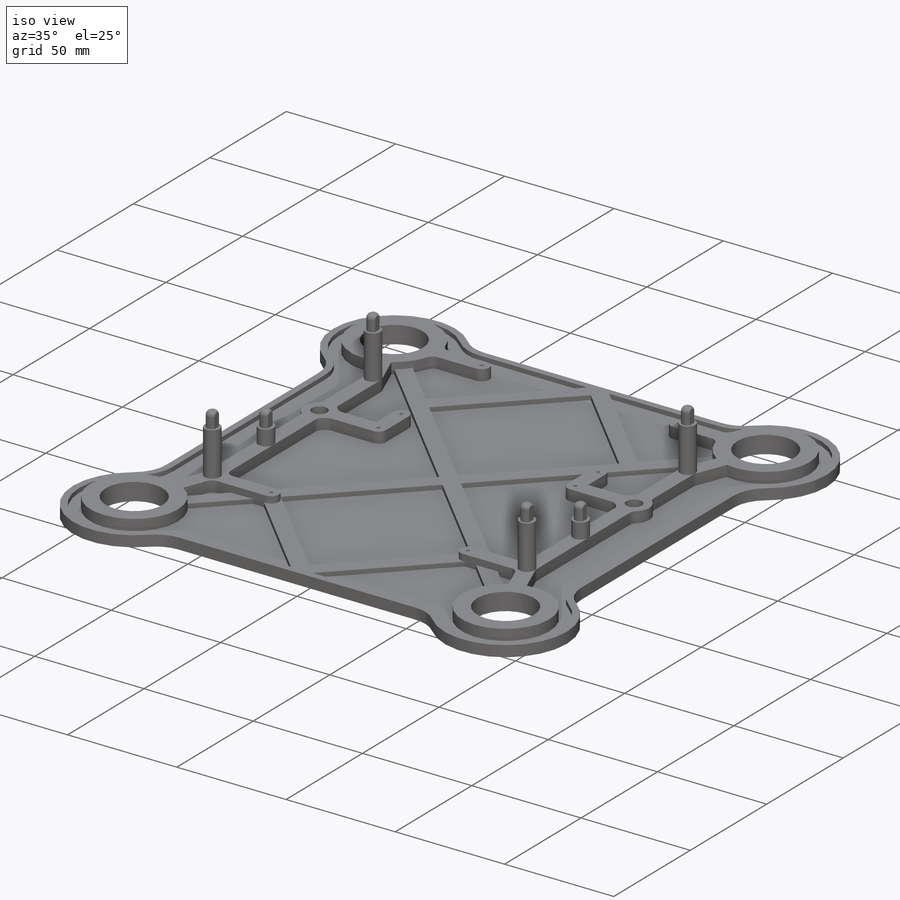
[diagram: iso view]
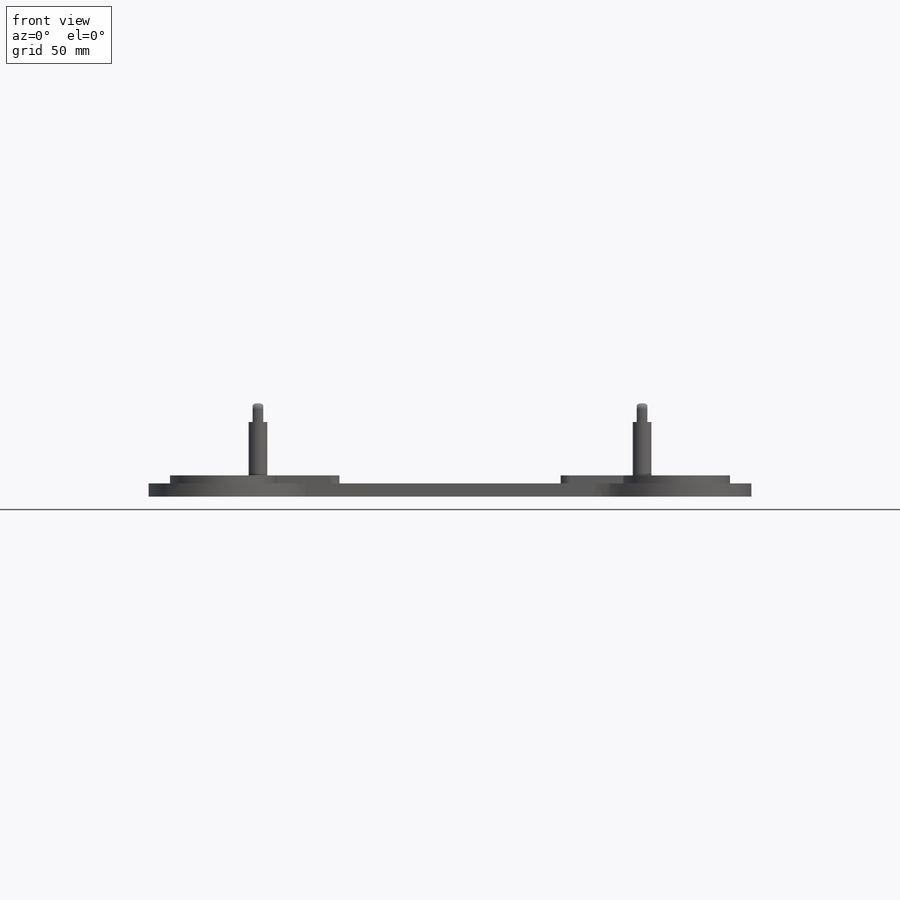
[diagram: front view]
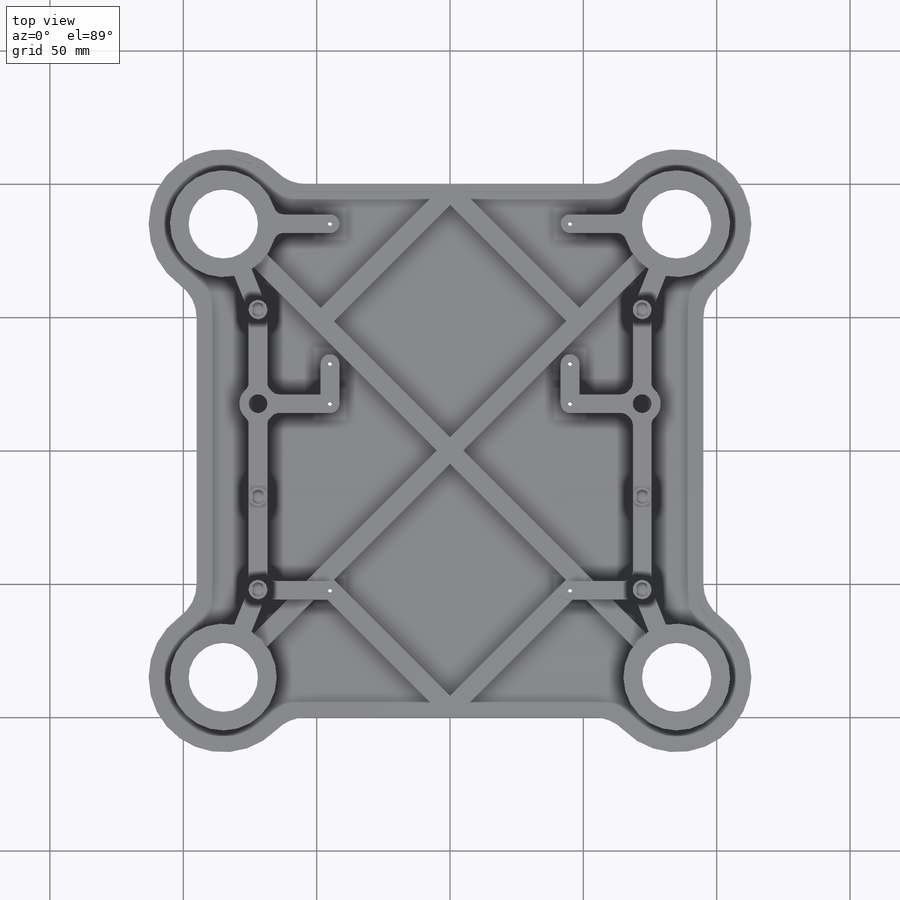
[diagram: top view]
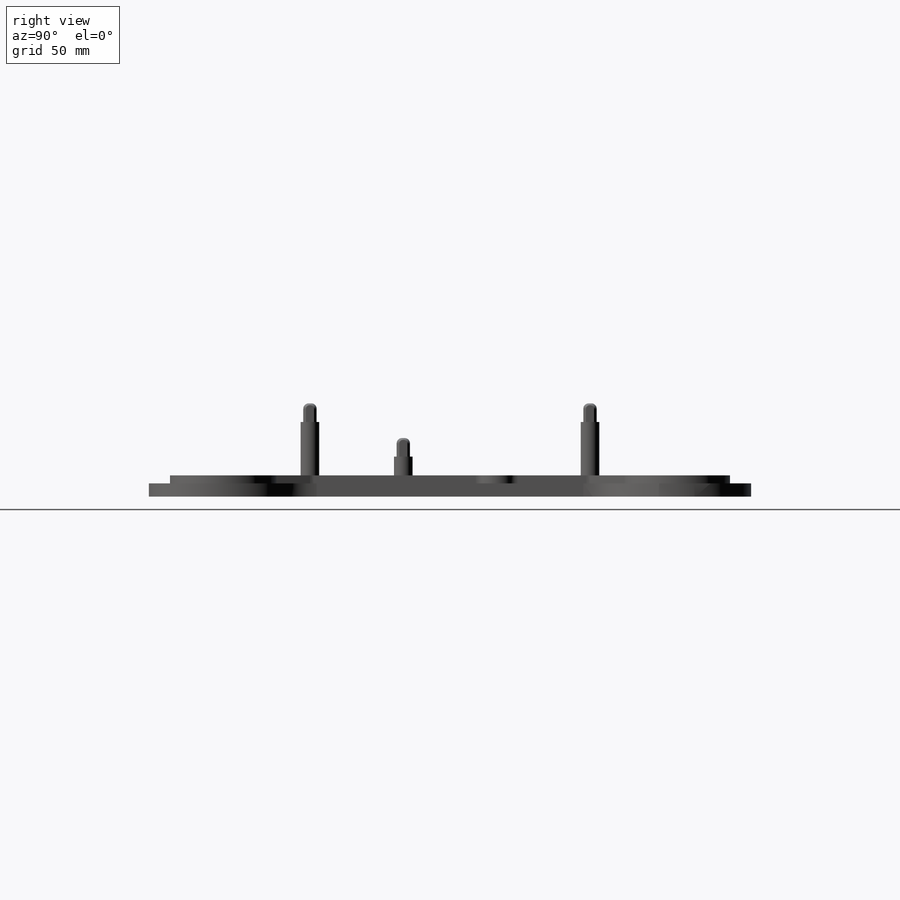
[diagram: right view]
SOLIDWORKS PART (.sldprt)
format: sldprt  version: not decoded by parser v0  size: 867,328 bytes
history: native  units: mm
features: sketch x11, extrude x8, cut_extrude x2, fillet x2, material x1, mirror x1 (+12 scaffold rows collapsed)
feature tree (37):
  scaffold x12  (default folders/planes/origin — collapsed)
  material  "ABS"
  sketch  "Sketch1"  dims[c1.D1=26.0mm c1.D2=~20.400633mm c1.D3=~20.400633mm c1.D4=160.0mm c1.D5=~39.389855mm c1.D6=160.0mm c2.D2=20.0mm c2.D3=~34.931347mm c2.D5=20.0mm c2.D4=160.0mm c3.D5=20.0mm c3.D2=70.2mm c3.D3=70.2mm c3.D4=~74.750669mm c4.D5=10.0mm c4.D6=~198.555584mm c4.D2=200.0mm c4.D3=~88.506702mm c5.D2=10.0mm c5.D3=~31.339894mm c6.D3=90.0deg c7.D3=~11.485198mm c7.D5=7.5mm c7.D2=200.0mm c8.D3=200.0mm c9.D3=90.0deg]
  extrude  "Base"  Depth=3mm
  sketch  "Sketch2"  dims[c1.D2=5.0mm c1.D1=0.0mm c2.D1=2.0mm c2.D5=3.0mm c2.D6=1.0mm c2.D7=5.0mm]
  sketch  "Sketch4"  dims[D1=20.0mm]
  extrude  "wheel mount"  Depth=8mm
  sketch  "Sketch5"  dims[D1=35.0mm D2=7.0mm D3=35.0mm D4=10.0mm]
  extrude  "upper base mount"  Depth=25mm
  sketch  "Sketch11"  dims[c1.D1=7.0mm c1.D2=~3.203317mm c1.D4=3.5mm c1.D7=3.5mm c2.D1=~4.782596mm c2.D2=~7.772543mm c2.D3=~5.756918mm c3.D2=3.5mm c3.D4=4.6084mm c3.D5=~5.157217mm c3.D6=~5.265805mm c3.D1=3.5mm c4.D2=5.0mm c4.D3=80.0mm c4.D4=40.0mm c5.D2=3.5mm c5.D3=3.5mm c5.D4=45.0mm c5.D5=70.0mm c6.D4=7.0mm c6.D6=45.0mm c6.D8=3.5mm c6.D9=3.5mm c6.D10=~27.009619mm c6.D5=70.0mm c7.D10=15.0mm]
  extrude  "gear rim"  [1 undecoded]
  extrude  "gear mount"  [1 undecoded]
  sketch  "Sketch5<3>"  dims[D1=12.0mm]
  sketch  "Sketch12"
  cut_extrude  "servo gear mount"  Depth=4mm
  fillet  "gear rim fillet"  Radius=3.5mm insidegear=3.5mm
  sketch  "Sketch13"  dims[D1=5.0mm D2=2.0mm D3=2.0mm]
  extrude  "upper base fixers"  Depth=7mm
  sketch  "Sketch14"  dims[D1=0.0mm]
  extrude  "gear fixer"  Depth=7mm
  fillet  "fixer fillet"  Radius=2mm
  sketch  "Sketch22"  dims[D1=3.5mm D2=3.5mm D3=3.5mm D4=3.5mm D5=~65.796465mm]
  extrude  "Boss-Extrude1"  Depth=2mm
  sketch  "Sketch23"  dims[D1=1.5mm D2=3.0mm]
  cut_extrude  "Cut-Extrude1"  [1 undecoded]
  mirror  "Mirror1"
decode coverage: 19 of 24 modeling features carry decoded parameters
note: ~ marks probable driven/reference dimensions
note: 3 parameter values undecoded
summary: no parameter record found for 3 features
note: suppression state not decoded; provenance and decode notes live in map.json
